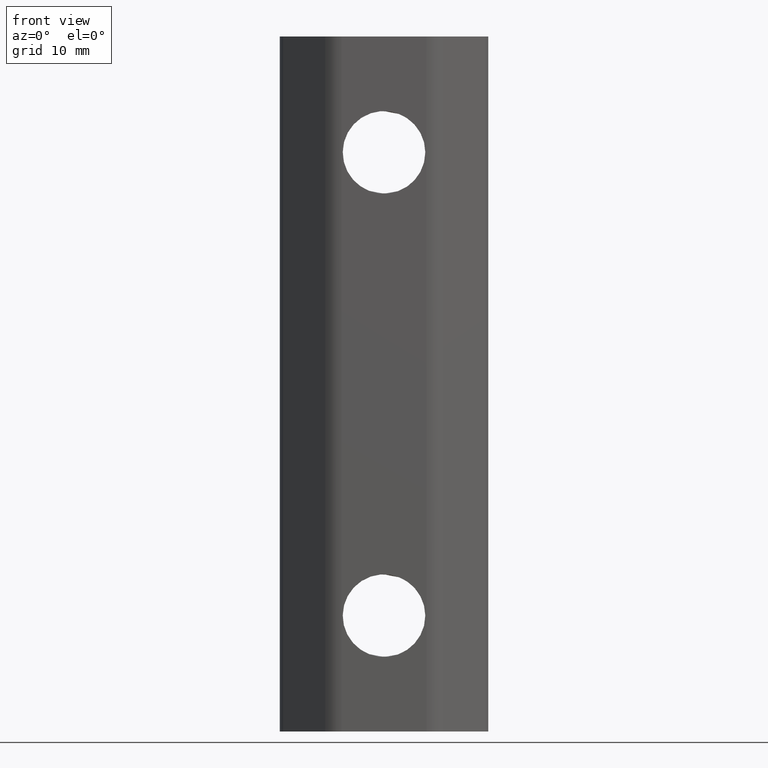
[diagram: clean part render]
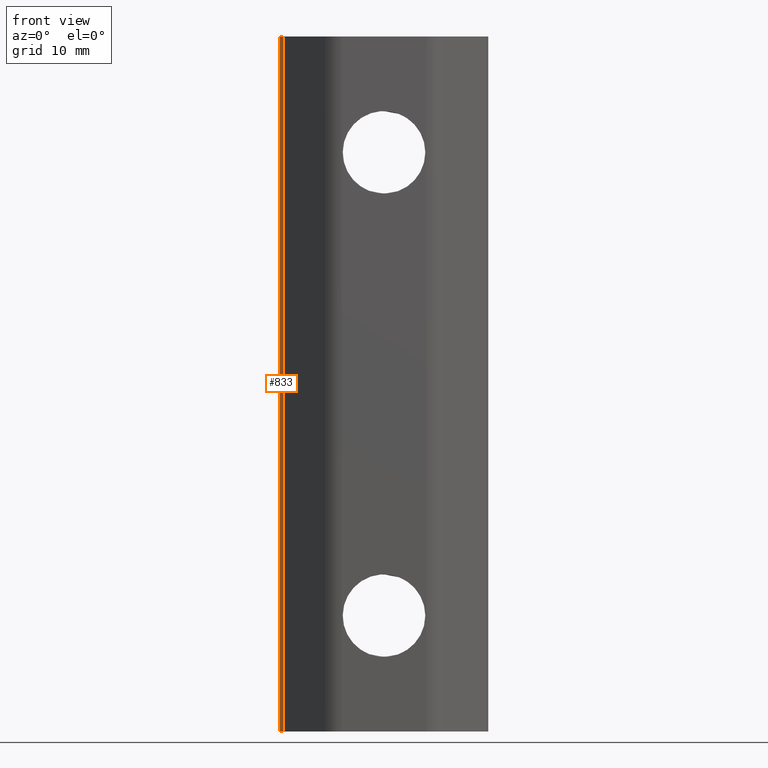
[diagram: same view with one face highlighted and labeled with its STEP entity id]
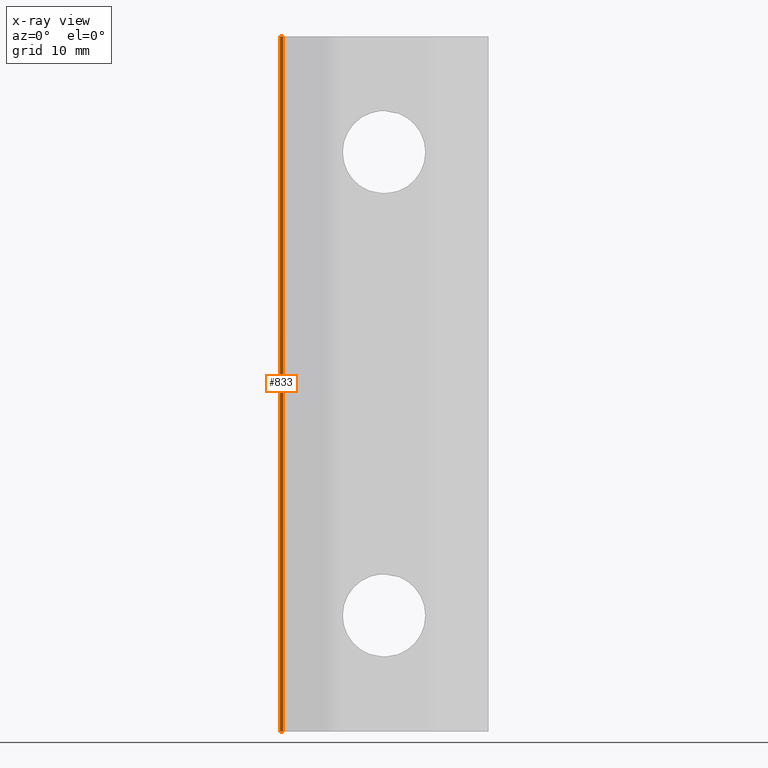
[diagram: x-ray of the same camera — body ghosted, the highlighted face saturated]
A machine part, front view. The second image highlights one B-rep face of the part: STEP entity #833.
The next image is the same camera in x-ray: the body ghosted, the highlighted face saturated — about 0% of this face is hidden behind the body in this view.
In plain terms, the highlighted cylindrical surface (edge-blend (fillet) strip) has radius 1 mm, axis along (0, 0, 1).
Its self-contained STEP definition (entity closure, byte-faithful):
#499=CARTESIAN_POINT('',(-8.707106781186548,-1.996596881897697,-30.0));
#500=VERTEX_POINT('',#499);
#507=CARTESIAN_POINT('',(-9.0,-1.289490100711149,-30.0));
#508=VERTEX_POINT('',#507);
#509=CARTESIAN_POINT('',(-8.000000000000005,-1.289490100711151,-30.0));
#510=DIRECTION('',(0.0,0.0,1.0));
#511=DIRECTION('',(1.0,0.0,0.0));
#512=AXIS2_PLACEMENT_3D('',#509,#510,#511);
#513=CIRCLE('',#512,0.999999999999995);
#514=EDGE_CURVE('',#508,#500,#513,.T.);
#790=CARTESIAN_POINT('',(-8.707106781186548,-1.996596881897697,30.0));
#791=VERTEX_POINT('',#790);
#798=CARTESIAN_POINT('',(-8.707106781186548,-1.996596881897697,30.0));
#799=DIRECTION('',(0.0,0.0,-1.0));
#800=VECTOR('',#799,60.0);
#801=LINE('',#798,#800);
#802=EDGE_CURVE('',#791,#500,#801,.T.);
#809=CARTESIAN_POINT('',(-8.000000000000005,-1.289490100711151,0.0));
#810=DIRECTION('',(0.0,0.0,1.0));
#811=DIRECTION('',(1.0,0.0,0.0));
#812=AXIS2_PLACEMENT_3D('',#809,#810,#811);
#813=CYLINDRICAL_SURFACE('',#812,0.999999999999995);
#814=CARTESIAN_POINT('',(-9.0,-1.289490100711149,30.0));
#815=VERTEX_POINT('',#814);
#816=CARTESIAN_POINT('',(-8.000000000000005,-1.289490100711151,30.0));
#817=DIRECTION('',(0.0,0.0,-1.0));
#818=DIRECTION('',(1.0,0.0,0.0));
#819=AXIS2_PLACEMENT_3D('',#816,#817,#818);
#820=CIRCLE('',#819,0.999999999999995);
#821=EDGE_CURVE('',#791,#815,#820,.T.);
#822=ORIENTED_EDGE('',*,*,#821,.T.);
#823=CARTESIAN_POINT('',(-9.0,-1.289490100711149,30.0));
#824=DIRECTION('',(0.0,0.0,-1.0));
#825=VECTOR('',#824,60.0);
#826=LINE('',#823,#825);
#827=EDGE_CURVE('',#815,#508,#826,.T.);
#828=ORIENTED_EDGE('',*,*,#827,.T.);
#829=ORIENTED_EDGE('',*,*,#514,.T.);
#830=ORIENTED_EDGE('',*,*,#802,.F.);
#831=EDGE_LOOP('',(#822,#828,#829,#830));
#832=FACE_OUTER_BOUND('',#831,.T.);
#833=ADVANCED_FACE('',(#832),#813,.T.);